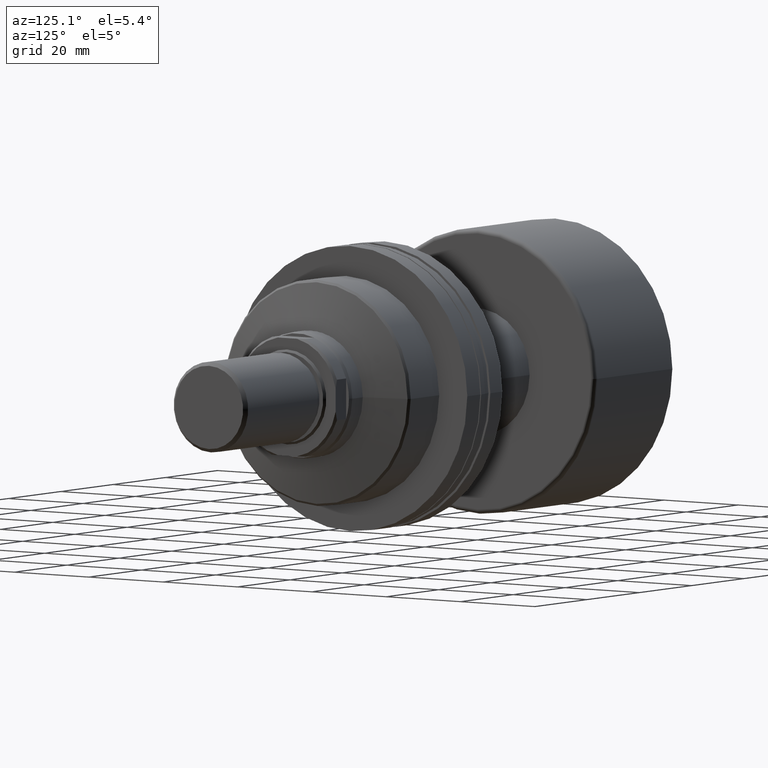
[diagram: clean part render]
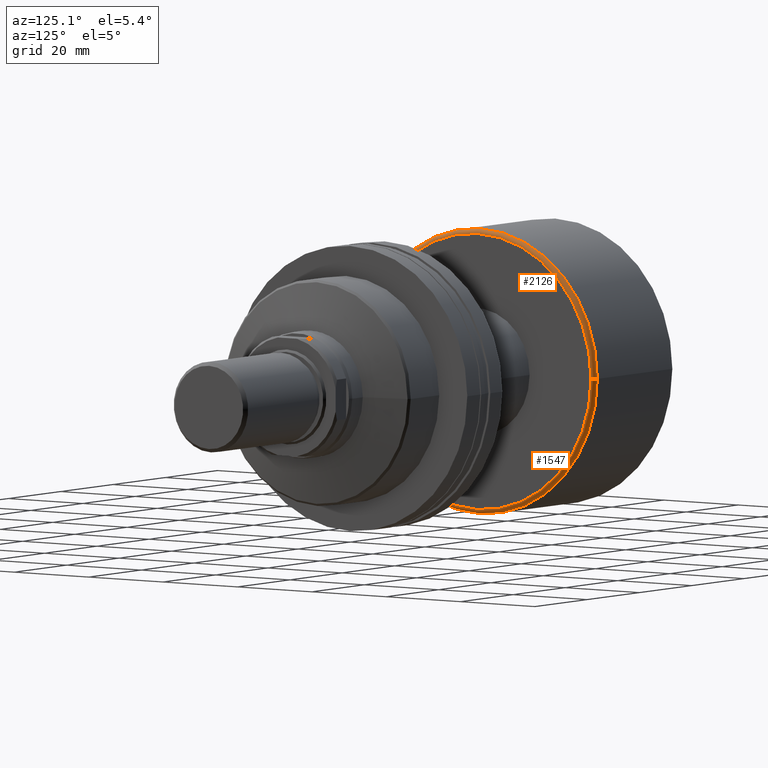
[diagram: same view with one multi-face feature highlighted, each face labeled with its STEP entity id]
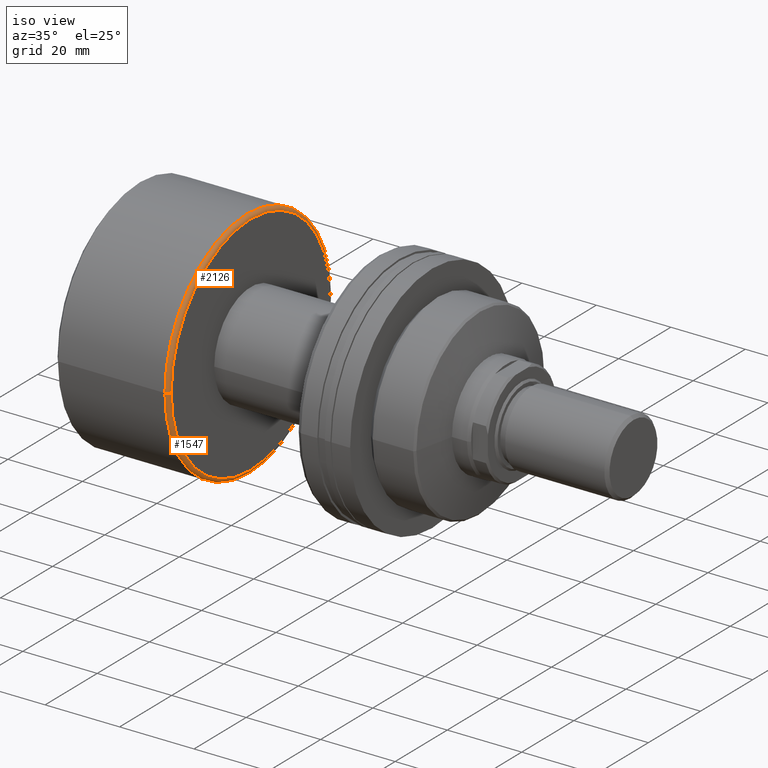
[diagram: same view with one multi-face feature highlighted, each face labeled with its STEP entity id]
A machine part, auxiliary view. The highlighted faces form ONE feature: a constant-radius fillet chain: 2 tangent blend faces with common blend radius 1 mm. The faces share edges in the B-rep.
A second angle (iso view) of the same feature is appended — it is thin or edge-on in the first view.
Their STEP definitions:
[1] entity #2126 (Torus):
#23 = EDGE_CURVE ( 'NONE', #1380, #2662, #946, .T. ) ;
#24 = EDGE_CURVE ( 'NONE', #377, #1380, #1934, .T. ) ;
#32 = DIRECTION ( 'NONE',  ( 0.000000000000000000, -1.000000000000000000, 0.000000000000000000 ) ) ;
#52 = AXIS2_PLACEMENT_3D ( 'NONE', #2145, #1094, #1954 ) ;
#250 = DIRECTION ( 'NONE',  ( 1.069542322069065801E-17, -1.000000000000000000, 0.000000000000000000 ) ) ;
#328 = DIRECTION ( 'NONE',  ( 0.000000000000000000, 0.000000000000000000, -1.000000000000000000 ) ) ;
#362 = CARTESIAN_POINT ( 'NONE',  ( 31.19999999999999929, -30.50000000000000000, 0.000000000000000000 ) ) ;
#377 = VERTEX_POINT ( 'NONE', #362 ) ;
#383 = CIRCLE ( 'NONE', #974, 31.50000000000000000 ) ;
#407 = AXIS2_PLACEMENT_3D ( 'NONE', #440, #1970, #32 ) ;
#440 = CARTESIAN_POINT ( 'NONE',  ( 31.19999999999999929, 3.336972044855484916E-16, 0.000000000000000000 ) ) ;
#540 = DIRECTION ( 'NONE',  ( -1.000000000000000000, -1.069542322069065801E-17, -0.000000000000000000 ) ) ;
#823 = CARTESIAN_POINT ( 'NONE',  ( 31.19999999999999929, 30.50000000000000000, 3.796405077356795115E-15 ) ) ;
#932 = CARTESIAN_POINT ( 'NONE',  ( 30.19999999999999929, 31.50000000000000000, 3.857637417314162689E-15 ) ) ;
#946 = CIRCLE ( 'NONE', #52, 1.000000000000000888 ) ;
#974 = AXIS2_PLACEMENT_3D ( 'NONE', #1606, #540, #1397 ) ;
#1094 = DIRECTION ( 'NONE',  ( 1.309811581274509052E-33, -1.224646799147353207E-16, 1.000000000000000000 ) ) ;
#1105 = EDGE_CURVE ( 'NONE', #2319, #2662, #383, .T. ) ;
#1118 = DIRECTION ( 'NONE',  ( -1.000000000000000000, -1.069542322069065801E-17, -0.000000000000000000 ) ) ;
#1380 = VERTEX_POINT ( 'NONE', #823 ) ;
#1397 = DIRECTION ( 'NONE',  ( 0.000000000000000000, -1.000000000000000000, 0.000000000000000000 ) ) ;
#1406 = CARTESIAN_POINT ( 'NONE',  ( 30.19999999999999929, -31.50000000000000000, 0.000000000000000000 ) ) ;
#1546 = EDGE_CURVE ( 'NONE', #377, #2319, #1867, .T. ) ;
#1556 = ORIENTED_EDGE ( 'NONE', *, *, #23, .T. ) ;
#1606 = CARTESIAN_POINT ( 'NONE',  ( 30.19999999999999929, 3.230017812648578475E-16, 0.000000000000000000 ) ) ;
#1653 = TOROIDAL_SURFACE ( 'NONE', #1830, 30.50000000000000000, 1.000000000000000888 ) ;
#1830 = AXIS2_PLACEMENT_3D ( 'NONE', #2659, #1118, #250 ) ;
#1837 = DIRECTION ( 'NONE',  ( -1.000000000000000000, 0.000000000000000000, 0.000000000000000000 ) ) ;
#1867 = CIRCLE ( 'NONE', #2327, 1.000000000000000888 ) ;
#1934 = CIRCLE ( 'NONE', #407, 30.50000000000000000 ) ;
#1954 = DIRECTION ( 'NONE',  ( 0.000000000000000000, -1.000000000000000000, -1.224646799147357151E-16 ) ) ;
#1970 = DIRECTION ( 'NONE',  ( -1.000000000000000000, -1.069542322069065801E-17, -0.000000000000000000 ) ) ;
#2025 = FACE_OUTER_BOUND ( 'NONE', #2558, .T. ) ;
#2126 = ADVANCED_FACE ( 'NONE', ( #2025 ), #1653, .T. ) ;
#2145 = CARTESIAN_POINT ( 'NONE',  ( 30.19999999999999929, 30.50000000000000000, 3.735172737399427541E-15 ) ) ;
#2226 = ORIENTED_EDGE ( 'NONE', *, *, #24, .T. ) ;
#2319 = VERTEX_POINT ( 'NONE', #1406 ) ;
#2327 = AXIS2_PLACEMENT_3D ( 'NONE', #2499, #328, #1837 ) ;
#2499 = CARTESIAN_POINT ( 'NONE',  ( 30.19999999999999929, -30.50000000000000000, 0.000000000000000000 ) ) ;
#2526 = ORIENTED_EDGE ( 'NONE', *, *, #1546, .F. ) ;
#2546 = ORIENTED_EDGE ( 'NONE', *, *, #1105, .F. ) ;
#2558 = EDGE_LOOP ( 'NONE', ( #2226, #1556, #2546, #2526 ) ) ;
#2659 = CARTESIAN_POINT ( 'NONE',  ( 30.19999999999999929, 0.000000000000000000, 0.000000000000000000 ) ) ;
#2662 = VERTEX_POINT ( 'NONE', #932 ) ;
[2] entity #1547 (Torus):
#5 = EDGE_LOOP ( 'NONE', ( #1516, #1869, #465, #750 ) ) ;
#23 = EDGE_CURVE ( 'NONE', #1380, #2662, #946, .T. ) ;
#52 = AXIS2_PLACEMENT_3D ( 'NONE', #2145, #1094, #1954 ) ;
#158 = DIRECTION ( 'NONE',  ( -1.000000000000000000, -1.069542322069065801E-17, -0.000000000000000000 ) ) ;
#328 = DIRECTION ( 'NONE',  ( 0.000000000000000000, 0.000000000000000000, -1.000000000000000000 ) ) ;
#362 = CARTESIAN_POINT ( 'NONE',  ( 31.19999999999999929, -30.50000000000000000, 0.000000000000000000 ) ) ;
#377 = VERTEX_POINT ( 'NONE', #362 ) ;
#465 = ORIENTED_EDGE ( 'NONE', *, *, #1546, .T. ) ;
#750 = ORIENTED_EDGE ( 'NONE', *, *, #2538, .F. ) ;
#823 = CARTESIAN_POINT ( 'NONE',  ( 31.19999999999999929, 30.50000000000000000, 3.796405077356795115E-15 ) ) ;
#877 = AXIS2_PLACEMENT_3D ( 'NONE', #2273, #158, #1409 ) ;
#932 = CARTESIAN_POINT ( 'NONE',  ( 30.19999999999999929, 31.50000000000000000, 3.857637417314162689E-15 ) ) ;
#946 = CIRCLE ( 'NONE', #52, 1.000000000000000888 ) ;
#1062 = AXIS2_PLACEMENT_3D ( 'NONE', #1212, #2702, #1181 ) ;
#1094 = DIRECTION ( 'NONE',  ( 1.309811581274509052E-33, -1.224646799147353207E-16, 1.000000000000000000 ) ) ;
#1101 = TOROIDAL_SURFACE ( 'NONE', #1062, 30.50000000000000000, 1.000000000000000888 ) ;
#1181 = DIRECTION ( 'NONE',  ( 1.069542322069065801E-17, -1.000000000000000000, 0.000000000000000000 ) ) ;
#1212 = CARTESIAN_POINT ( 'NONE',  ( 30.19999999999999929, 0.000000000000000000, 0.000000000000000000 ) ) ;
#1380 = VERTEX_POINT ( 'NONE', #823 ) ;
#1404 = FACE_OUTER_BOUND ( 'NONE', #5, .T. ) ;
#1406 = CARTESIAN_POINT ( 'NONE',  ( 30.19999999999999929, -31.50000000000000000, 0.000000000000000000 ) ) ;
#1409 = DIRECTION ( 'NONE',  ( 0.000000000000000000, -1.000000000000000000, 0.000000000000000000 ) ) ;
#1507 = CARTESIAN_POINT ( 'NONE',  ( 30.19999999999999929, 3.230017812648578475E-16, 0.000000000000000000 ) ) ;
#1516 = ORIENTED_EDGE ( 'NONE', *, *, #23, .F. ) ;
#1546 = EDGE_CURVE ( 'NONE', #377, #2319, #1867, .T. ) ;
#1547 = ADVANCED_FACE ( 'NONE', ( #1404 ), #1101, .T. ) ;
#1752 = EDGE_CURVE ( 'NONE', #1380, #377, #2599, .T. ) ;
#1833 = DIRECTION ( 'NONE',  ( 0.000000000000000000, -1.000000000000000000, 0.000000000000000000 ) ) ;
#1837 = DIRECTION ( 'NONE',  ( -1.000000000000000000, 0.000000000000000000, 0.000000000000000000 ) ) ;
#1867 = CIRCLE ( 'NONE', #2327, 1.000000000000000888 ) ;
#1869 = ORIENTED_EDGE ( 'NONE', *, *, #1752, .T. ) ;
#1954 = DIRECTION ( 'NONE',  ( 0.000000000000000000, -1.000000000000000000, -1.224646799147357151E-16 ) ) ;
#2065 = CIRCLE ( 'NONE', #2148, 31.50000000000000000 ) ;
#2145 = CARTESIAN_POINT ( 'NONE',  ( 30.19999999999999929, 30.50000000000000000, 3.735172737399427541E-15 ) ) ;
#2148 = AXIS2_PLACEMENT_3D ( 'NONE', #1507, #2379, #1833 ) ;
#2273 = CARTESIAN_POINT ( 'NONE',  ( 31.19999999999999929, 3.336972044855484916E-16, 0.000000000000000000 ) ) ;
#2319 = VERTEX_POINT ( 'NONE', #1406 ) ;
#2327 = AXIS2_PLACEMENT_3D ( 'NONE', #2499, #328, #1837 ) ;
#2379 = DIRECTION ( 'NONE',  ( -1.000000000000000000, -1.069542322069065801E-17, -0.000000000000000000 ) ) ;
#2499 = CARTESIAN_POINT ( 'NONE',  ( 30.19999999999999929, -30.50000000000000000, 0.000000000000000000 ) ) ;
#2538 = EDGE_CURVE ( 'NONE', #2662, #2319, #2065, .T. ) ;
#2599 = CIRCLE ( 'NONE', #877, 30.50000000000000000 ) ;
#2662 = VERTEX_POINT ( 'NONE', #932 ) ;
#2702 = DIRECTION ( 'NONE',  ( -1.000000000000000000, -1.069542322069065801E-17, -0.000000000000000000 ) ) ;